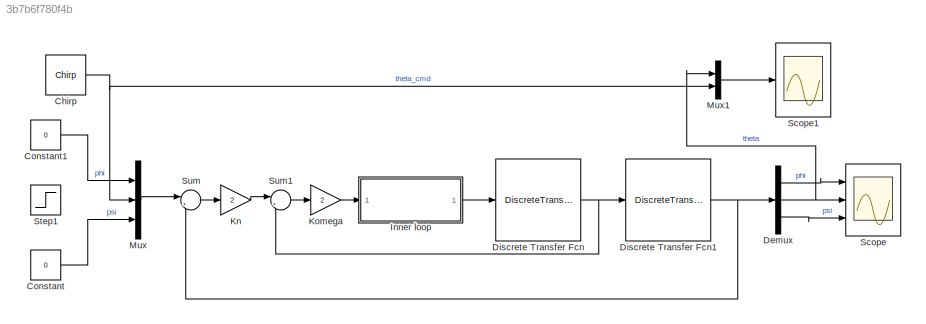
MODEL slx_3b7b6f780f4b
KIND model
CONFIG AbsTol = auto
CONFIG EnableMultiTasking = off
CONFIG FixedStep = auto
CONFIG MaxStep = auto
CONFIG MinStep = auto
CONFIG RelTol = 1e-3
CONFIG SampleTimeConstraint = Unconstrained
CONFIG SolverName = VariableStepAuto
CONFIG StartTime = 0.0
CONFIG StopTime = 10
BLOCK [Reference] Chirp  REF=dspsrcs4/Chirp
  Ports = [0, 1]
  SourceBlock = dspsrcs4/Chirp
  SourceProductBaseCode = DS
  SourceType = Chirp
BLOCK [Constant] Constant
  Value = 0
BLOCK [Constant] Constant1
  Value = 0
BLOCK [Demux] Demux
  Outputs = 3
  Ports = [1, 3]
BLOCK [DiscreteTransferFcn] Discrete Transfer Fcn
  Denominator = [1 -1]
  InputPortMap = u0
  Numerator = [Ts 0]
  Ports = [1, 1]
BLOCK [DiscreteTransferFcn] Discrete Transfer Fcn1
  Denominator = [1 -1]
  InputPortMap = u0
  Numerator = [Ts 0]
  Ports = [1, 1]
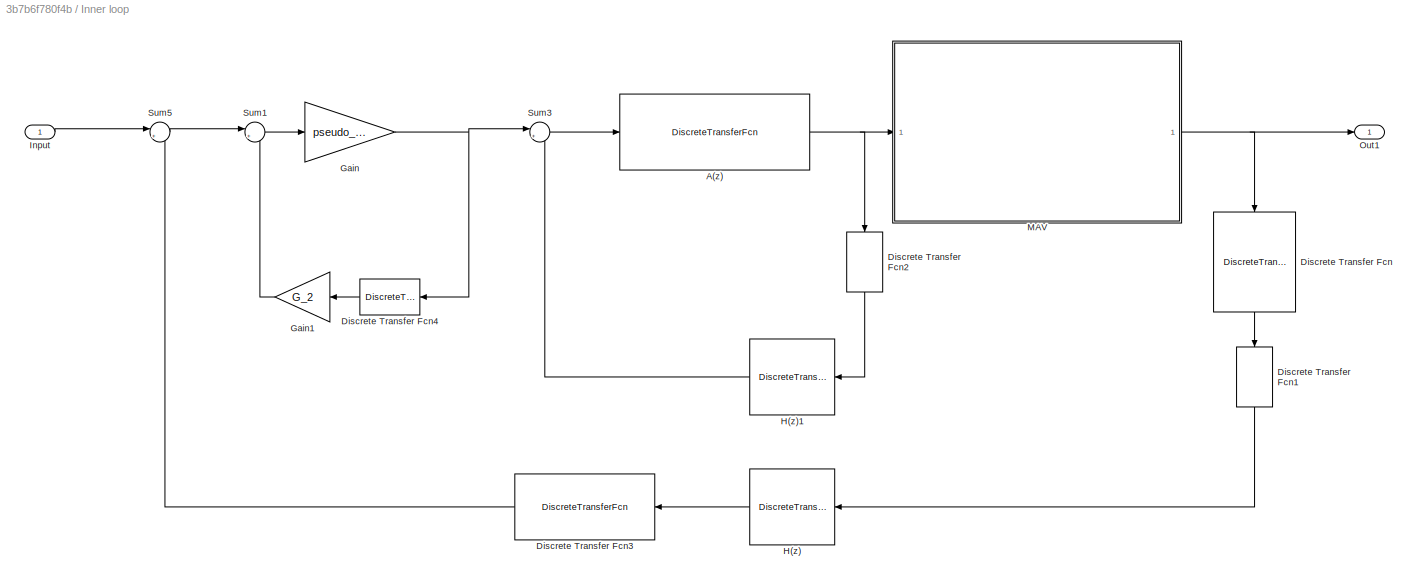
BLOCK [SubSystem] Inner loop
  Ports = [1, 1]
  RequestExecContextInheritance = off
BLOCK [DiscreteTransferFcn] Inner loop/A(z)
  DenCoefDataTypeStr = int16
  Denominator = mot_den
  InputPortMap = u0
  Numerator = mot_num
  Ports = [1, 1]
BLOCK [DiscreteTransferFcn] Inner loop/Discrete Transfer Fcn
  Denominator = [1 -1]
  InputPortMap = u0
  NameLocation = left
  Numerator = [Ts 0]
  Ports = [1, 1]
BLOCK [DiscreteTransferFcn] Inner loop/Discrete Transfer Fcn1
  Denominator = [1 0]
  InputPortMap = u0
  NameLocation = left
  Ports = [1, 1]
BLOCK [DiscreteTransferFcn] Inner loop/Discrete Transfer Fcn2
  Denominator = [1 0]
  InputPortMap = u0
  NameLocation = left
  Ports = [1, 1]
BLOCK [DiscreteTransferFcn] Inner loop/Discrete Transfer Fcn3
  Denominator = [Ts 0]
  InputPortMap = u0
  Numerator = [1 -1]
  Ports = [1, 1]
BLOCK [DiscreteTransferFcn] Inner loop/Discrete Transfer Fcn4
  Denominator = [1 0]
  InputPortMap = u0
  NameLocation = top
  Ports = [1, 1]
BLOCK [Gain] Inner loop/Gain
  Gain = pseudo_g12
  Multiplication = Matrix(K*u)
BLOCK [Gain] Inner loop/Gain1
  Gain = G_2
  Multiplication = Matrix(K*u)
  NameLocation = top
BLOCK [DiscreteTransferFcn] Inner loop/H(z)
  DenCoefDataTypeStr = int16
  Denominator = H_z_den
  InputPortMap = u0
  Numerator = H_z_num
  Ports = [1, 1]
BLOCK [DiscreteTransferFcn] Inner loop/H(z)1
  DenCoefDataTypeStr = int16
  Denominator = H_z_den
  InputPortMap = u0
  Numerator = H_z_num
  Ports = [1, 1]
BLOCK [Inport] Inner loop/Input
  PortDimensions = 3
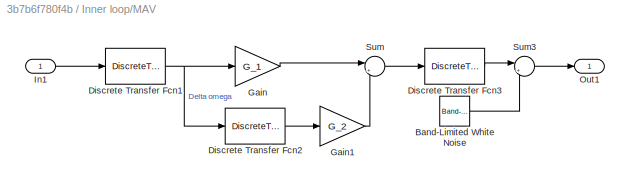
BLOCK [SubSystem] Inner loop/MAV
  Ports = [1, 1]
  RequestExecContextInheritance = off
BLOCK [Reference] Inner loop/MAV/Band-Limited White Noise  REF=simulink/Sources/Band-Limited
White Noise
  Ports = [0, 1]
  SourceBlock = simulink/Sources/Band-Limited\nWhite Noise
  SourceProductBaseCode = SL
  SourceType = Band-Limited White Noise.
BLOCK [DiscreteTransferFcn] Inner loop/MAV/Discrete Transfer Fcn1
  Denominator = [1 0]
  InputPortMap = u0
  Numerator = [1 -1]
  Ports = [1, 1]
BLOCK [DiscreteTransferFcn] Inner loop/MAV/Discrete Transfer Fcn2
  Denominator = [1 0]
  InputPortMap = u0
  Numerator = [1 -1]
  Ports = [1, 1]
BLOCK [DiscreteTransferFcn] Inner loop/MAV/Discrete Transfer Fcn3
  Denominator = [1 -1]
  InputPortMap = u0
  Numerator = [1 0]
  Ports = [1, 1]
BLOCK [Gain] Inner loop/MAV/Gain
  Gain = G_1
  Multiplication = Matrix(K*u)
BLOCK [Gain] Inner loop/MAV/Gain1
  Gain = G_2
  Multiplication = Matrix(K*u)
BLOCK [Inport] Inner loop/MAV/In1
  PortDimensions = 4
BLOCK [Outport] Inner loop/MAV/Out1
  PortDimensions = 3
BLOCK [Sum] Inner loop/MAV/Sum
  Inputs = |++
  Ports = [2, 1]
BLOCK [Sum] Inner loop/MAV/Sum3
  Inputs = |++
  Ports = [2, 1]
BLOCK [Outport] Inner loop/Out1
  PortDimensions = 3
BLOCK [Sum] Inner loop/Sum1
  Inputs = |+-
  Ports = [2, 1]
BLOCK [Sum] Inner loop/Sum3
  Inputs = |++
  Ports = [2, 1]
BLOCK [Sum] Inner loop/Sum5
  Inputs = |+-
  Ports = [2, 1]
BLOCK [Gain] Kn
  Gain = 2
BLOCK [Gain] Komega
  Gain = 2
BLOCK [Mux] Mux
  DisplayOption = bar
  Inputs = 3
  Ports = [3, 1]
BLOCK [Mux] Mux1
  DisplayOption = bar
  Inputs = 2
  Ports = [2, 1]
BLOCK [Scope] Scope
  Floating = off
  NumInputPorts = 3
  Ports = [3]
  ScopeSpecificationString = Simulink.scopes.TimeScopeBlockCfg('CurrentConfiguration', extmgr.ConfigurationSet(extmgr.Configuration('Core','General UI',true),extmgr.Configuration('Core','Source UI',true),extmgr.Configuration('Sources','WiredSimulink',true),extmgr.Configuration('Visuals','Time Domain',true,'SerializedDisplays',{struct('MinYLimReal','-1','MaxYLimReal','1','YLabelReal','','MinYLimMag','0.00000','MaxYLimMag','0.0...<+2617ch>
BLOCK [Scope] Scope1
  Floating = off
  NumInputPorts = 1
  Ports = [1]
  ScopeSpecificationString = Simulink.scopes.TimeScopeBlockCfg('CurrentConfiguration', extmgr.ConfigurationSet(extmgr.Configuration('Core','General UI',true),extmgr.Configuration('Core','Source UI',true),extmgr.Configuration('Sources','WiredSimulink',true,'DataLoggingVariableName','ScopeData1'),extmgr.Configuration('Visuals','Time Domain',true,'SerializedDisplays',{struct('MinYLimReal','-1.47733','MaxYLimReal','1.48001','YLab...<+1473ch>
BLOCK [Step] Step1
  SampleTime = 0
  Time = 10
BLOCK [Sum] Sum
  Inputs = |+-
  Ports = [2, 1]
BLOCK [Sum] Sum1
  Inputs = |+-
  Ports = [2, 1]
NET Chirp:1 -> Mux1:2, Mux:2
LINE Constant1:1 -> Mux:1
LINE Constant:1 -> Mux:3
LINE Demux:1 -> Scope:1
NET Demux:2 -> Mux1:1, Scope:2
LINE Demux:3 -> Scope:3
NET Discrete Transfer Fcn1:1 -> Demux:1, Sum:2
NET Discrete Transfer Fcn:1 -> Discrete Transfer Fcn1:1, Sum1:2
NET Inner loop/A(z):1 -> Inner loop/Discrete Transfer Fcn2:1, Inner loop/MAV:1
LINE Inner loop/Discrete Transfer Fcn1:1 -> Inner loop/H(z):1
LINE Inner loop/Discrete Transfer Fcn2:1 -> Inner loop/H(z)1:1
LINE Inner loop/Discrete Transfer Fcn3:1 -> Inner loop/Sum5:2
LINE Inner loop/Discrete Transfer Fcn4:1 -> Inner loop/Gain1:1
LINE Inner loop/Discrete Transfer Fcn:1 -> Inner loop/Discrete Transfer Fcn1:1
LINE Inner loop/Gain1:1 -> Inner loop/Sum1:2
NET Inner loop/Gain:1 -> Inner loop/Discrete Transfer Fcn4:1, Inner loop/Sum3:1
LINE Inner loop/H(z)1:1 -> Inner loop/Sum3:2
LINE Inner loop/H(z):1 -> Inner loop/Discrete Transfer Fcn3:1
LINE Inner loop/Input:1 -> Inner loop/Sum5:1
LINE Inner loop/MAV/Band-Limited White Noise:1 -> Inner loop/MAV/Sum3:2
NET Inner loop/MAV/Discrete Transfer Fcn1:1 -> Inner loop/MAV/Discrete Transfer Fcn2:1, Inner loop/MAV/Gain:1
LINE Inner loop/MAV/Discrete Transfer Fcn2:1 -> Inner loop/MAV/Gain1:1
LINE Inner loop/MAV/Discrete Transfer Fcn3:1 -> Inner loop/MAV/Sum3:1
LINE Inner loop/MAV/Gain1:1 -> Inner loop/MAV/Sum:2
LINE Inner loop/MAV/Gain:1 -> Inner loop/MAV/Sum:1
LINE Inner loop/MAV/In1:1 -> Inner loop/MAV/Discrete Transfer Fcn1:1
LINE Inner loop/MAV/Sum3:1 -> Inner loop/MAV/Out1:1
LINE Inner loop/MAV/Sum:1 -> Inner loop/MAV/Discrete Transfer Fcn3:1
NET Inner loop/MAV:1 -> Inner loop/Discrete Transfer Fcn:1, Inner loop/Out1:1
LINE Inner loop/Sum1:1 -> Inner loop/Gain:1
LINE Inner loop/Sum3:1 -> Inner loop/A(z):1
LINE Inner loop/Sum5:1 -> Inner loop/Sum1:1
LINE Inner loop:1 -> Discrete Transfer Fcn:1
LINE Kn:1 -> Sum1:1
LINE Komega:1 -> Inner loop:1
LINE Mux1:1 -> Scope1:1
LINE Mux:1 -> Sum:1
LINE Sum1:1 -> Komega:1
LINE Sum:1 -> Kn:1
note: NET lines group one-source signal fan-out (src -> all destinations, sorted); 1:1 wires keep LINE
